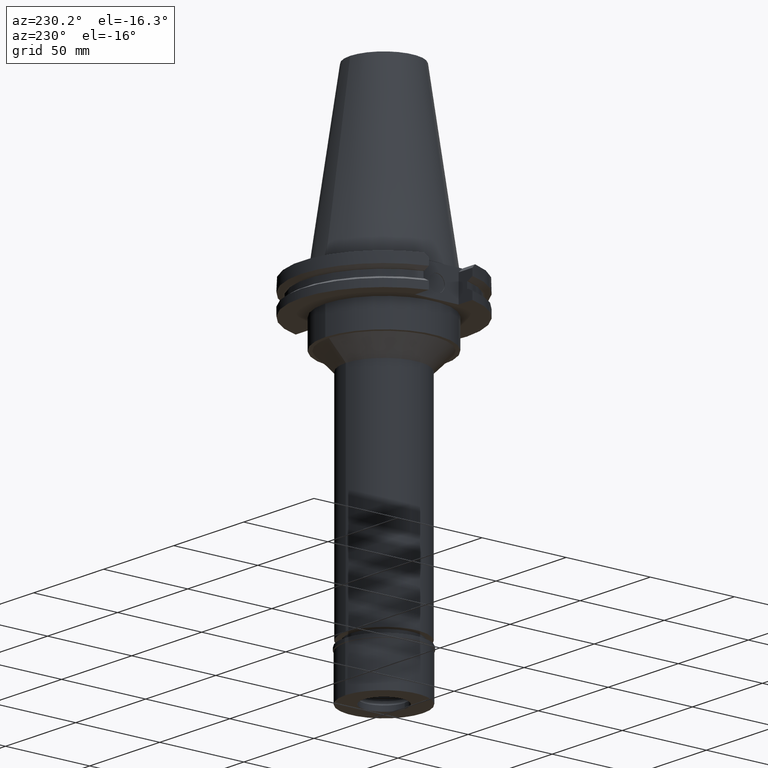
[diagram: clean part render]
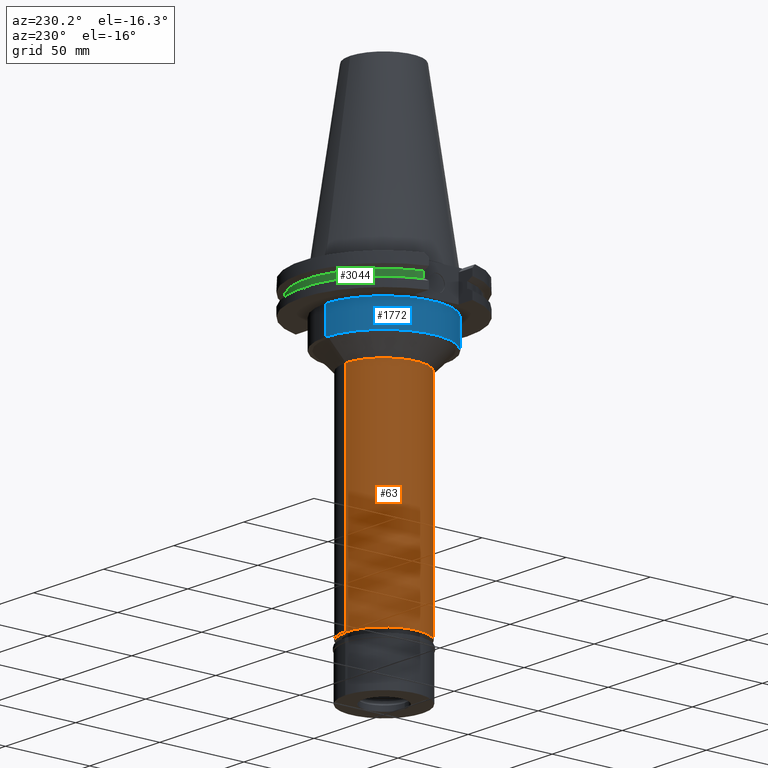
[diagram: same view with three faces highlighted in distinct colors, each labeled with its STEP entity id]
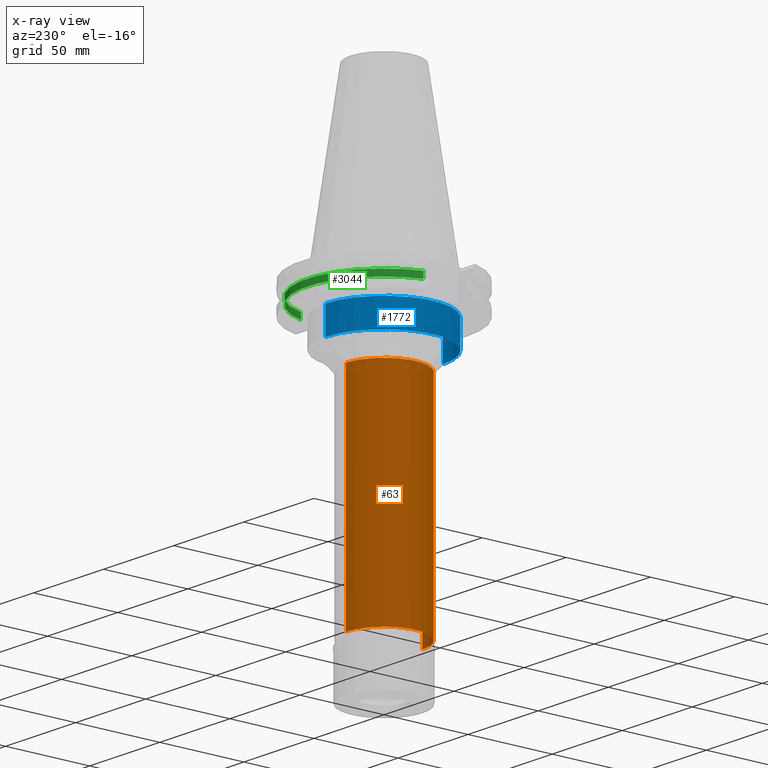
[diagram: x-ray of the same camera — body ghosted, the three highlighted faces saturated]
A machine part, auxiliary view with three faces highlighted in distinct colors.
The next image is the same camera in x-ray (body ghosted, the three faces saturated) — at least one of them is partly hidden behind the body in this view.
Their STEP definitions:

[orange] entity #63 — the highlighted cylindrical surface (partial cylindrical patch) has radius 22.75 mm, axis along (0, 0, -1).
#5 = ORIENTED_EDGE ( 'NONE', *, *, #1626, .T. ) ;
#63 = ADVANCED_FACE ( 'NONE', ( #538 ), #2836, .T. ) ;
#146 = CIRCLE ( 'NONE', #1926, 22.75000000000000000 ) ;
#148 = DIRECTION ( 'NONE',  ( 0.0000000000000000000, 1.000000000000000000, 0.0000000000000000000 ) ) ;
#325 = VERTEX_POINT ( 'NONE', #2415 ) ;
#383 = DIRECTION ( 'NONE',  ( 0.0000000000000000000, 0.0000000000000000000, -1.000000000000000000 ) ) ;
#384 = DIRECTION ( 'NONE',  ( 0.0000000000000000000, 0.0000000000000000000, 1.000000000000000000 ) ) ;
#538 = FACE_OUTER_BOUND ( 'NONE', #2922, .T. ) ;
#603 = CARTESIAN_POINT ( 'NONE',  ( 0.0000000000000000000, 22.75000000000000000, -45.00000000000000000 ) ) ;
#613 = VERTEX_POINT ( 'NONE', #3152 ) ;
#800 = CARTESIAN_POINT ( 'NONE',  ( 0.0000000000000000000, 2.648788561875999721E-14, 116.2900000000000063 ) ) ;
#857 = ORIENTED_EDGE ( 'NONE', *, *, #1545, .T. ) ;
#895 = LINE ( 'NONE', #2686, #3262 ) ;
#1157 = CARTESIAN_POINT ( 'NONE',  ( 0.0000000000000000000, 2.648788561875999721E-14, -173.0000000000000000 ) ) ;
#1207 = VERTEX_POINT ( 'NONE', #603 ) ;
#1241 = DIRECTION ( 'NONE',  ( 0.0000000000000000000, 0.0000000000000000000, -1.000000000000000000 ) ) ;
#1256 = EDGE_CURVE ( 'NONE', #613, #2084, #895, .T. ) ;
#1374 = DIRECTION ( 'NONE',  ( 0.0000000000000000000, 0.0000000000000000000, -1.000000000000000000 ) ) ;
#1474 = DIRECTION ( 'NONE',  ( 0.0000000000000000000, -1.000000000000000000, 0.0000000000000000000 ) ) ;
#1480 = ORIENTED_EDGE ( 'NONE', *, *, #2633, .T. ) ;
#1545 = EDGE_CURVE ( 'NONE', #325, #2084, #146, .T. ) ;
#1626 = EDGE_CURVE ( 'NONE', #1207, #325, #2533, .T. ) ;
#1644 = CIRCLE ( 'NONE', #2989, 22.75000000000000000 ) ;
#1708 = VECTOR ( 'NONE', #1241, 1000.000000000000000 ) ;
#1732 = CARTESIAN_POINT ( 'NONE',  ( 0.0000000000000000000, 0.0000000000000000000, -45.00000000000000000 ) ) ;
#1926 = AXIS2_PLACEMENT_3D ( 'NONE', #1157, #384, #148 ) ;
#1993 = CARTESIAN_POINT ( 'NONE',  ( 0.0000000000000000000, 22.75000000000000000, -45.00000000000000000 ) ) ;
#2023 = AXIS2_PLACEMENT_3D ( 'NONE', #800, #1374, #2079 ) ;
#2079 = DIRECTION ( 'NONE',  ( 0.0000000000000000000, -1.000000000000000000, 0.0000000000000000000 ) ) ;
#2084 = VERTEX_POINT ( 'NONE', #2662 ) ;
#2415 = CARTESIAN_POINT ( 'NONE',  ( 0.0000000000000000000, 22.75000000000000000, -173.0000000000000000 ) ) ;
#2430 = ORIENTED_EDGE ( 'NONE', *, *, #1256, .F. ) ;
#2533 = LINE ( 'NONE', #1993, #1708 ) ;
#2633 = EDGE_CURVE ( 'NONE', #613, #1207, #1644, .T. ) ;
#2662 = CARTESIAN_POINT ( 'NONE',  ( 0.0000000000000000000, -22.75000000000000000, -173.0000000000000000 ) ) ;
#2686 = CARTESIAN_POINT ( 'NONE',  ( 0.0000000000000000000, -22.75000000000000000, -45.00000000000000000 ) ) ;
#2754 = DIRECTION ( 'NONE',  ( 0.0000000000000000000, 0.0000000000000000000, -1.000000000000000000 ) ) ;
#2836 = CYLINDRICAL_SURFACE ( 'NONE', #2023, 22.75000000000000000 ) ;
#2922 = EDGE_LOOP ( 'NONE', ( #857, #2430, #1480, #5 ) ) ;
#2989 = AXIS2_PLACEMENT_3D ( 'NONE', #1732, #2754, #1474 ) ;
#3152 = CARTESIAN_POINT ( 'NONE',  ( 0.0000000000000000000, -22.75000000000000000, -45.00000000000000000 ) ) ;
#3262 = VECTOR ( 'NONE', #383, 1000.000000000000000 ) ;

[blue] entity #1772 — the highlighted cylindrical surface (partial cylindrical patch) has radius 34.925 mm, axis along (0, 0, -1).
#49 = VERTEX_POINT ( 'NONE', #2620 ) ;
#92 = CIRCLE ( 'NONE', #309, 34.92499999999999716 ) ;
#127 = CARTESIAN_POINT ( 'NONE',  ( 0.0000000000000000000, 2.648788561875999721E-14, -35.00000000000000000 ) ) ;
#150 = CARTESIAN_POINT ( 'NONE',  ( 0.0000000000000000000, 34.92499999999999716, -35.00000000000000000 ) ) ;
#162 = ORIENTED_EDGE ( 'NONE', *, *, #2940, .F. ) ;
#184 = CARTESIAN_POINT ( 'NONE',  ( 0.0000000000000000000, 2.648788561875999721E-14, -19.05000000000000071 ) ) ;
#193 = DIRECTION ( 'NONE',  ( 0.0000000000000000000, 0.0000000000000000000, -1.000000000000000000 ) ) ;
#241 = FACE_OUTER_BOUND ( 'NONE', #2212, .T. ) ;
#282 = CARTESIAN_POINT ( 'NONE',  ( 0.0000000000000000000, 34.92499999999999716, -19.05000000000000071 ) ) ;
#309 = AXIS2_PLACEMENT_3D ( 'NONE', #127, #652, #952 ) ;
#456 = VECTOR ( 'NONE', #3115, 1000.000000000000000 ) ;
#652 = DIRECTION ( 'NONE',  ( 0.0000000000000000000, 0.0000000000000000000, 1.000000000000000000 ) ) ;
#701 = CARTESIAN_POINT ( 'NONE',  ( 0.0000000000000000000, 2.648788561875999721E-14, 116.2900000000000063 ) ) ;
#726 = CARTESIAN_POINT ( 'NONE',  ( 0.0000000000000000000, 34.92499999999999716, -19.05000000000000071 ) ) ;
#952 = DIRECTION ( 'NONE',  ( 0.0000000000000000000, 1.000000000000000000, 0.0000000000000000000 ) ) ;
#1000 = VERTEX_POINT ( 'NONE', #2542 ) ;
#1211 = DIRECTION ( 'NONE',  ( 0.0000000000000000000, 0.0000000000000000000, -1.000000000000000000 ) ) ;
#1273 = CYLINDRICAL_SURFACE ( 'NONE', #3207, 34.92499999999999716 ) ;
#1547 = EDGE_CURVE ( 'NONE', #3024, #1000, #92, .T. ) ;
#1594 = CIRCLE ( 'NONE', #2563, 34.92499999999999716 ) ;
#1759 = DIRECTION ( 'NONE',  ( 0.0000000000000000000, -1.000000000000000000, 0.0000000000000000000 ) ) ;
#1769 = ORIENTED_EDGE ( 'NONE', *, *, #1547, .T. ) ;
#1772 = ADVANCED_FACE ( 'NONE', ( #241 ), #1273, .T. ) ;
#1829 = LINE ( 'NONE', #2124, #2400 ) ;
#1900 = EDGE_CURVE ( 'NONE', #1978, #3024, #2897, .T. ) ;
#1978 = VERTEX_POINT ( 'NONE', #726 ) ;
#2124 = CARTESIAN_POINT ( 'NONE',  ( 0.0000000000000000000, -34.92499999999999716, -19.05000000000000071 ) ) ;
#2212 = EDGE_LOOP ( 'NONE', ( #1769, #162, #2217, #2298 ) ) ;
#2217 = ORIENTED_EDGE ( 'NONE', *, *, #2594, .T. ) ;
#2298 = ORIENTED_EDGE ( 'NONE', *, *, #1900, .T. ) ;
#2400 = VECTOR ( 'NONE', #2855, 1000.000000000000000 ) ;
#2475 = DIRECTION ( 'NONE',  ( 0.0000000000000000000, -1.000000000000000000, 0.0000000000000000000 ) ) ;
#2542 = CARTESIAN_POINT ( 'NONE',  ( 0.0000000000000000000, -34.92499999999999716, -35.00000000000000000 ) ) ;
#2563 = AXIS2_PLACEMENT_3D ( 'NONE', #184, #1211, #2475 ) ;
#2594 = EDGE_CURVE ( 'NONE', #49, #1978, #1594, .T. ) ;
#2620 = CARTESIAN_POINT ( 'NONE',  ( 0.0000000000000000000, -34.92499999999999716, -19.05000000000000071 ) ) ;
#2855 = DIRECTION ( 'NONE',  ( 0.0000000000000000000, 0.0000000000000000000, -1.000000000000000000 ) ) ;
#2897 = LINE ( 'NONE', #282, #456 ) ;
#2940 = EDGE_CURVE ( 'NONE', #49, #1000, #1829, .T. ) ;
#3024 = VERTEX_POINT ( 'NONE', #150 ) ;
#3115 = DIRECTION ( 'NONE',  ( 0.0000000000000000000, 0.0000000000000000000, -1.000000000000000000 ) ) ;
#3207 = AXIS2_PLACEMENT_3D ( 'NONE', #701, #193, #1759 ) ;

[green] entity #3044 — the highlighted cylindrical surface (partial cylindrical patch) has radius 45.645 mm, axis along (0, 0, -1).
#129 = EDGE_CURVE ( 'NONE', #458, #1701, #3036, .T. ) ;
#138 = CARTESIAN_POINT ( 'NONE',  ( 0.0000000000000000000, 2.648788561875999721E-14, -9.207499999999999574 ) ) ;
#157 = ORIENTED_EDGE ( 'NONE', *, *, #2059, .T. ) ;
#301 = DIRECTION ( 'NONE',  ( 0.0000000000000000000, 0.0000000000000000000, 1.000000000000000000 ) ) ;
#303 = CIRCLE ( 'NONE', #2767, 45.64499999999999602 ) ;
#378 = EDGE_CURVE ( 'NONE', #458, #2629, #3050, .T. ) ;
#386 = FACE_OUTER_BOUND ( 'NONE', #2528, .T. ) ;
#420 = DIRECTION ( 'NONE',  ( 0.0000000000000000000, -1.000000000000000000, 0.0000000000000000000 ) ) ;
#458 = VERTEX_POINT ( 'NONE', #997 ) ;
#589 = DIRECTION ( 'NONE',  ( 0.9588773428654665532, 0.2838207908861898887, 0.0000000000000000000 ) ) ;
#610 = VERTEX_POINT ( 'NONE', #1824 ) ;
#647 = DIRECTION ( 'NONE',  ( 0.0000000000000000000, 0.0000000000000000000, -1.000000000000000000 ) ) ;
#672 = CARTESIAN_POINT ( 'NONE',  ( 0.0000000000000000000, 2.648788561875999721E-14, 116.2900000000000063 ) ) ;
#854 = AXIS2_PLACEMENT_3D ( 'NONE', #3105, #301, #589 ) ;
#954 = CYLINDRICAL_SURFACE ( 'NONE', #2587, 45.64499999999999602 ) ;
#997 = CARTESIAN_POINT ( 'NONE',  ( 43.76795631508999662, 12.95500000000000007, -13.04749999999999943 ) ) ;
#1111 = VECTOR ( 'NONE', #2488, 1000.000000000000000 ) ;
#1228 = CARTESIAN_POINT ( 'NONE',  ( 43.76795631508999662, 12.95500000000000007, -13.04749999999999943 ) ) ;
#1240 = ORIENTED_EDGE ( 'NONE', *, *, #1429, .F. ) ;
#1330 = VECTOR ( 'NONE', #1572, 1000.000000000000000 ) ;
#1429 = EDGE_CURVE ( 'NONE', #610, #1701, #2584, .T. ) ;
#1572 = DIRECTION ( 'NONE',  ( 0.0000000000000000000, 0.0000000000000000000, -1.000000000000000000 ) ) ;
#1701 = VERTEX_POINT ( 'NONE', #2567 ) ;
#1824 = CARTESIAN_POINT ( 'NONE',  ( -43.76795631508999662, 12.95500000000000007, -9.207499999999999574 ) ) ;
#2055 = ORIENTED_EDGE ( 'NONE', *, *, #129, .T. ) ;
#2059 = EDGE_CURVE ( 'NONE', #610, #2629, #303, .T. ) ;
#2161 = DIRECTION ( 'NONE',  ( 0.0000000000000000000, 0.0000000000000000000, -1.000000000000000000 ) ) ;
#2186 = DIRECTION ( 'NONE',  ( 0.0000000000000000000, 1.000000000000000000, 0.0000000000000000000 ) ) ;
#2388 = ORIENTED_EDGE ( 'NONE', *, *, #378, .F. ) ;
#2488 = DIRECTION ( 'NONE',  ( 0.0000000000000000000, 0.0000000000000000000, 1.000000000000000000 ) ) ;
#2528 = EDGE_LOOP ( 'NONE', ( #1240, #157, #2388, #2055 ) ) ;
#2567 = CARTESIAN_POINT ( 'NONE',  ( -43.76795631508999662, 12.95500000000000007, -13.04749999999999943 ) ) ;
#2584 = LINE ( 'NONE', #2853, #1330 ) ;
#2587 = AXIS2_PLACEMENT_3D ( 'NONE', #672, #2161, #420 ) ;
#2629 = VERTEX_POINT ( 'NONE', #2707 ) ;
#2707 = CARTESIAN_POINT ( 'NONE',  ( 43.76795631508999662, 12.95500000000000007, -9.207499999999999574 ) ) ;
#2767 = AXIS2_PLACEMENT_3D ( 'NONE', #138, #647, #2186 ) ;
#2853 = CARTESIAN_POINT ( 'NONE',  ( -43.76795631508999662, 12.95500000000000007, -9.207499999999999574 ) ) ;
#3036 = CIRCLE ( 'NONE', #854, 45.64500000000001734 ) ;
#3044 = ADVANCED_FACE ( 'NONE', ( #386 ), #954, .T. ) ;
#3050 = LINE ( 'NONE', #1228, #1111 ) ;
#3105 = CARTESIAN_POINT ( 'NONE',  ( 0.0000000000000000000, 2.648788561875999721E-14, -13.04749999999999943 ) ) ;